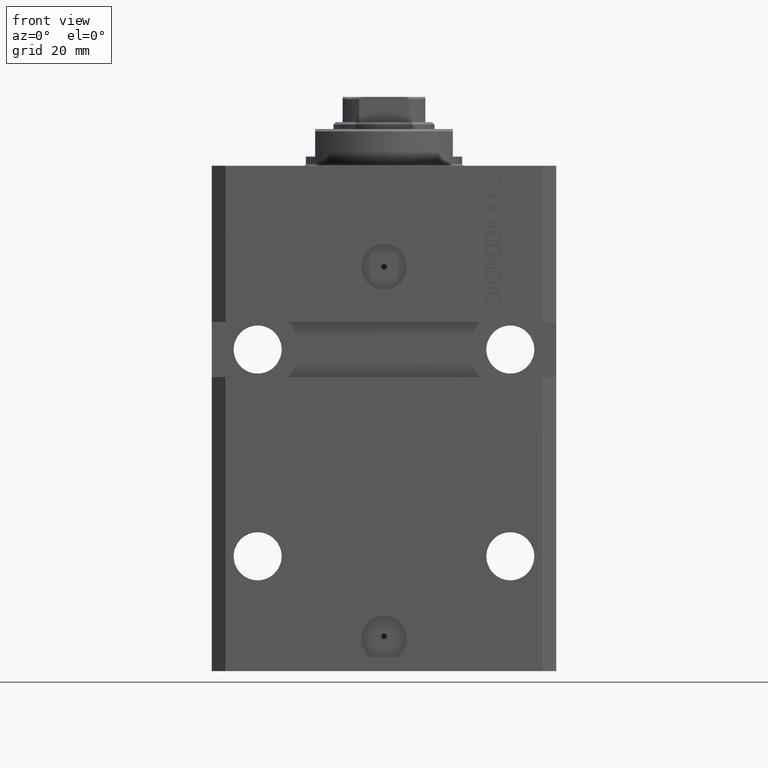
[diagram: clean part render]
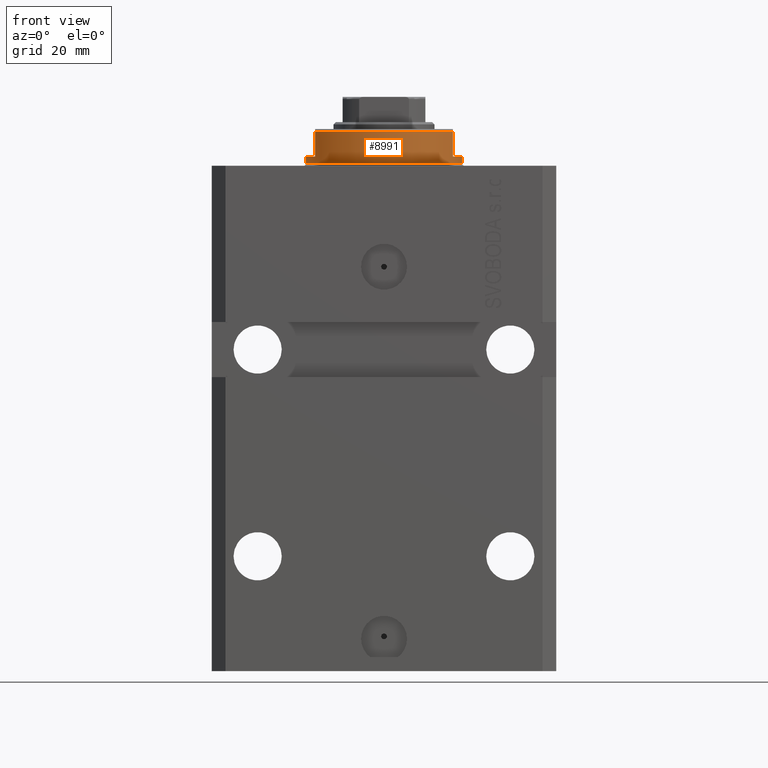
[diagram: same view with one face highlighted and labeled with its STEP entity id]
A machine part, front view. The second image highlights one B-rep face of the part: STEP entity #8991.
In plain terms, the highlighted cylindrical surface (partial cylindrical patch) has radius 17 mm, axis along (0, 0, -1).
Its self-contained STEP definition (entity closure, byte-faithful):
#597 = AXIS2_PLACEMENT_3D ( 'NONE', #37392, #18938, #23777 ) ;
#874 = DIRECTION ( 'NONE',  ( -0.000000000000000000, -0.000000000000000000, 1.000000000000000000 ) ) ;
#1426 = DIRECTION ( 'NONE',  ( -0.000000000000000000, -0.000000000000000000, 1.000000000000000000 ) ) ;
#2266 = EDGE_CURVE ( 'NONE', #27271, #40348, #42349, .T. ) ;
#2478 = CARTESIAN_POINT ( 'NONE',  ( -15.00000000000000000, -8.000000000000001776, -7.500000000000007105 ) ) ;
#3067 = ORIENTED_EDGE ( 'NONE', *, *, #5413, .T. ) ;
#4572 = CARTESIAN_POINT ( 'NONE',  ( 0.000000000000000000, 0.000000000000000000, -8.000000000000000000 ) ) ;
#4769 = ORIENTED_EDGE ( 'NONE', *, *, #20514, .T. ) ;
#5307 = VECTOR ( 'NONE', #14017, 1000.000000000000000 ) ;
#5413 = EDGE_CURVE ( 'NONE', #36968, #41093, #44291, .T. ) ;
#5837 = ORIENTED_EDGE ( 'NONE', *, *, #27711, .F. ) ;
#6333 = CARTESIAN_POINT ( 'NONE',  ( -17.00000000000000000, 2.081899558550500280E-15, -2.000000000000000000 ) ) ;
#6820 = CARTESIAN_POINT ( 'NONE',  ( -14.99999999999999645, -8.000000000000003553, -2.000000000000000000 ) ) ;
#7151 = ORIENTED_EDGE ( 'NONE', *, *, #17224, .F. ) ;
#7152 = AXIS2_PLACEMENT_3D ( 'NONE', #41470, #38081, #37595 ) ;
#7239 = DIRECTION ( 'NONE',  ( 0.000000000000000000, 0.000000000000000000, -1.000000000000000000 ) ) ;
#7335 = CARTESIAN_POINT ( 'NONE',  ( 15.00000000000000000, -8.000000000000001776, -8.000000000000000000 ) ) ;
#7431 = CARTESIAN_POINT ( 'NONE',  ( 0.000000000000000000, 0.000000000000000000, -2.000000000000000000 ) ) ;
#7938 = VERTEX_POINT ( 'NONE', #34181 ) ;
#7998 = VECTOR ( 'NONE', #874, 1000.000000000000000 ) ;
#8991 = ADVANCED_FACE ( 'NONE', ( #16402 ), #45496, .T. ) ;
#9201 = AXIS2_PLACEMENT_3D ( 'NONE', #4572, #1426, #12296 ) ;
#9345 = AXIS2_PLACEMENT_3D ( 'NONE', #47473, #7239, #18837 ) ;
#9858 = VERTEX_POINT ( 'NONE', #30328 ) ;
#10218 = CARTESIAN_POINT ( 'NONE',  ( 15.00000000000000000, -8.000000000000001776, -7.500000000000007105 ) ) ;
#10381 = CARTESIAN_POINT ( 'NONE',  ( -15.00000000000000000, -8.000000000000001776, -8.000000000000000000 ) ) ;
#10532 = VERTEX_POINT ( 'NONE', #6333 ) ;
#11741 = LINE ( 'NONE', #34050, #7998 ) ;
#12296 = DIRECTION ( 'NONE',  ( 1.000000000000000000, 0.000000000000000000, 0.000000000000000000 ) ) ;
#13514 = CARTESIAN_POINT ( 'NONE',  ( -17.00000000000000000, 2.081899558550500280E-15, -0.5000000000000004441 ) ) ;
#14017 = DIRECTION ( 'NONE',  ( 0.000000000000000000, 0.000000000000000000, -1.000000000000000000 ) ) ;
#14612 = LINE ( 'NONE', #7335, #16531 ) ;
#16402 = FACE_OUTER_BOUND ( 'NONE', #16462, .T. ) ;
#16462 = EDGE_LOOP ( 'NONE', ( #39125, #7151, #3067, #4769, #5837, #19271, #19921, #31201 ) ) ;
#16531 = VECTOR ( 'NONE', #22098, 1000.000000000000000 ) ;
#17197 = VECTOR ( 'NONE', #38015, 1000.000000000000000 ) ;
#17224 = EDGE_CURVE ( 'NONE', #36968, #10532, #23247, .T. ) ;
#17966 = CIRCLE ( 'NONE', #7152, 17.00000000000000000 ) ;
#18837 = DIRECTION ( 'NONE',  ( -1.000000000000000000, 0.000000000000000000, 0.000000000000000000 ) ) ;
#18938 = DIRECTION ( 'NONE',  ( -0.000000000000000000, -0.000000000000000000, -1.000000000000000000 ) ) ;
#19271 = ORIENTED_EDGE ( 'NONE', *, *, #35077, .F. ) ;
#19921 = ORIENTED_EDGE ( 'NONE', *, *, #27511, .T. ) ;
#20394 = DIRECTION ( 'NONE',  ( -1.000000000000000000, 0.000000000000000000, 0.000000000000000000 ) ) ;
#20514 = EDGE_CURVE ( 'NONE', #41093, #33370, #17966, .T. ) ;
#22098 = DIRECTION ( 'NONE',  ( 0.000000000000000000, 0.000000000000000000, -1.000000000000000000 ) ) ;
#22196 = DIRECTION ( 'NONE',  ( 0.000000000000000000, 0.000000000000000000, -1.000000000000000000 ) ) ;
#23247 = CIRCLE ( 'NONE', #9345, 17.00000000000000000 ) ;
#23413 = CARTESIAN_POINT ( 'NONE',  ( 17.00000000000000000, 0.000000000000000000, -0.5000000000000004441 ) ) ;
#23777 = DIRECTION ( 'NONE',  ( 1.000000000000000000, 0.000000000000000000, 0.000000000000000000 ) ) ;
#24248 = EDGE_CURVE ( 'NONE', #10532, #40348, #38482, .T. ) ;
#26734 = CIRCLE ( 'NONE', #42238, 17.00000000000000000 ) ;
#27271 = VERTEX_POINT ( 'NONE', #23413 ) ;
#27511 = EDGE_CURVE ( 'NONE', #9858, #27271, #11741, .T. ) ;
#27711 = EDGE_CURVE ( 'NONE', #7938, #33370, #14612, .T. ) ;
#30272 = CARTESIAN_POINT ( 'NONE',  ( -17.00000000000000000, 2.081899558550500280E-15, -8.000000000000000000 ) ) ;
#30328 = CARTESIAN_POINT ( 'NONE',  ( 17.00000000000000000, 0.000000000000000000, -2.000000000000000000 ) ) ;
#31201 = ORIENTED_EDGE ( 'NONE', *, *, #2266, .T. ) ;
#33370 = VERTEX_POINT ( 'NONE', #10218 ) ;
#34050 = CARTESIAN_POINT ( 'NONE',  ( 17.00000000000000000, 0.000000000000000000, -8.000000000000000000 ) ) ;
#34181 = CARTESIAN_POINT ( 'NONE',  ( 14.99999999999999645, -8.000000000000003553, -2.000000000000000000 ) ) ;
#35077 = EDGE_CURVE ( 'NONE', #9858, #7938, #26734, .T. ) ;
#36968 = VERTEX_POINT ( 'NONE', #6820 ) ;
#37392 = CARTESIAN_POINT ( 'NONE',  ( 0.000000000000000000, 0.000000000000000000, -0.5000000000000004441 ) ) ;
#37595 = DIRECTION ( 'NONE',  ( -1.000000000000000000, 0.000000000000000000, 0.000000000000000000 ) ) ;
#38015 = DIRECTION ( 'NONE',  ( -0.000000000000000000, -0.000000000000000000, 1.000000000000000000 ) ) ;
#38081 = DIRECTION ( 'NONE',  ( 0.000000000000000000, 0.000000000000000000, 1.000000000000000000 ) ) ;
#38482 = LINE ( 'NONE', #30272, #17197 ) ;
#39125 = ORIENTED_EDGE ( 'NONE', *, *, #24248, .F. ) ;
#40348 = VERTEX_POINT ( 'NONE', #13514 ) ;
#41093 = VERTEX_POINT ( 'NONE', #2478 ) ;
#41470 = CARTESIAN_POINT ( 'NONE',  ( 0.000000000000000000, 0.000000000000000000, -7.500000000000007105 ) ) ;
#42238 = AXIS2_PLACEMENT_3D ( 'NONE', #7431, #22196, #20394 ) ;
#42349 = CIRCLE ( 'NONE', #597, 17.00000000000000000 ) ;
#44291 = LINE ( 'NONE', #10381, #5307 ) ;
#45496 = CYLINDRICAL_SURFACE ( 'NONE', #9201, 17.00000000000000000 ) ;
#47473 = CARTESIAN_POINT ( 'NONE',  ( 0.000000000000000000, 0.000000000000000000, -2.000000000000000000 ) ) ;